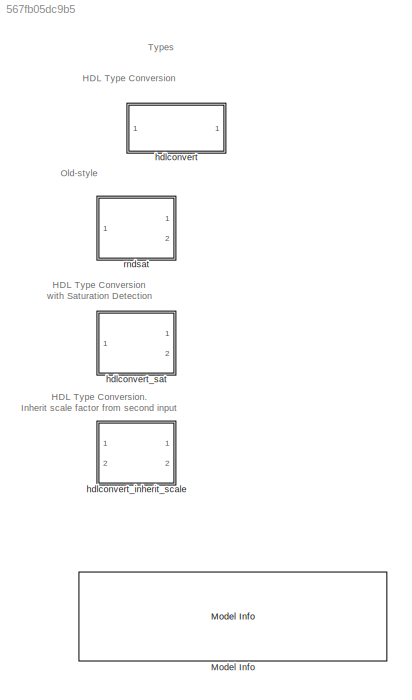
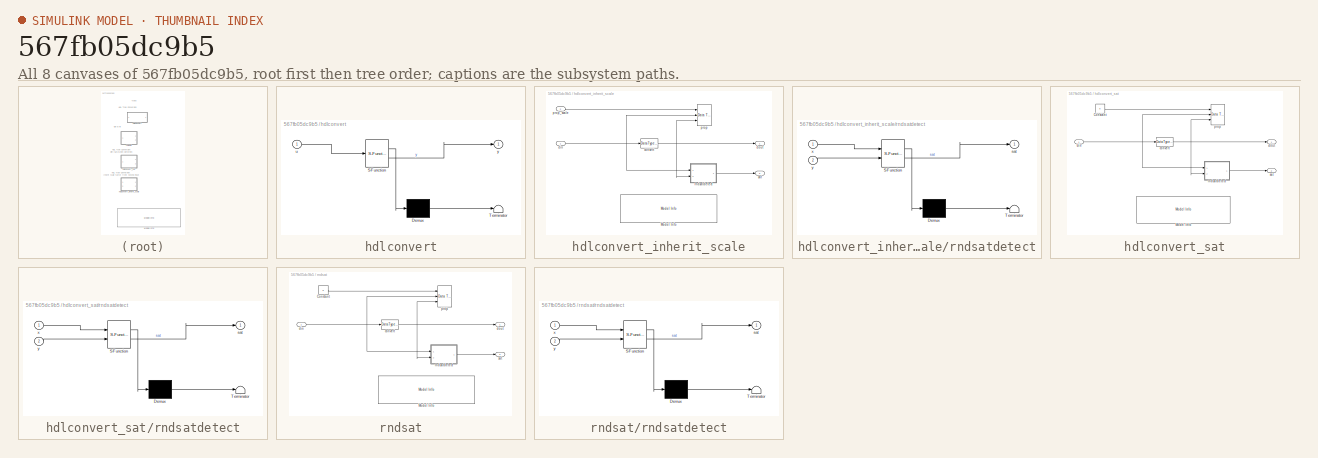
[diagram: thumbnail index - all 8 canvases of the model, root first then tree order]
MODEL slx_567fb05dc9b5
KIND library
CONFIG AbsTol = auto
CONFIG EnableMultiTasking = on
CONFIG FixedStep = auto
CONFIG MaxStep = auto
CONFIG MinStep = auto
CONFIG RelTol = 1e-3
CONFIG SampleTimeConstraint = Unconstrained
CONFIG SolverName = ode45
CONFIG StartTime = 0.0
CONFIG StopTime = 10.0
BLOCK [Reference] Model Info  REF=simulink/Model-Wide
Utilities/Model Info
  Ports = []
  SourceBlock = simulink/Model-Wide\nUtilities/Model Info
  SourceProductBaseCode = SL
  SourceType = CMBlock
BLOCK [SubSystem] hdlconvert
  ErrorFcn = Stateflow.Translate.translate
  PermitHierarchicalResolution = ExplicitOnly
  Ports = [1, 1]
  RequestExecContextInheritance = off
  SFBlockType = MATLAB Function
BLOCK [Demux] hdlconvert/ Demux 
  Outputs = 1
  Ports = [1, 1]
BLOCK [S-Function] hdlconvert/ SFunction 
  EnableBusSupport = off
  FunctionName = sf_sfun
  Parameters = Sforce,extend,maxwidth,roundMode,saturate,scaleopt,signed
  PortCounts = [1 2]
  Ports = [1, 2]
  SFcnIsStateOwnerBlock = off
  SFunctionDeploymentMode = off
  Tag = Stateflow S-Function 3
BLOCK [Terminator] hdlconvert/ Terminator 
BLOCK [Inport] hdlconvert/u
BLOCK [Outport] hdlconvert/y
BLOCK [SubSystem] hdlconvert_inherit_scale
  PermitHierarchicalResolution = None
  Ports = [2, 2]
  RTWSystemCode = Inline
  RequestExecContextInheritance = off
  TreatAsAtomicUnit = on
BLOCK [Reference] hdlconvert_inherit_scale/Model Info  REF=simulink/Model-Wide
Utilities/Model Info
  Ports = []
  SourceBlock = simulink/Model-Wide\nUtilities/Model Info
  SourceProductBaseCode = SL
  SourceType = CMBlock
BLOCK [DataTypeConversion] hdlconvert_inherit_scale/convert
  RndMeth = Nearest
BLOCK [Inport] hdlconvert_inherit_scale/din
BLOCK [Outport] hdlconvert_inherit_scale/dout
BLOCK [Reference] hdlconvert_inherit_scale/prop  REF=simulink/Signal
Attributes/Data Type
Propagation
  Ports = [3]
  SourceBlock = simulink/Signal\nAttributes/Data Type\nPropagation
  SourceProductBaseCode = SL
  SourceType = Data Type Propagation
BLOCK [Inport] hdlconvert_inherit_scale/prop_scale
  Port = 2
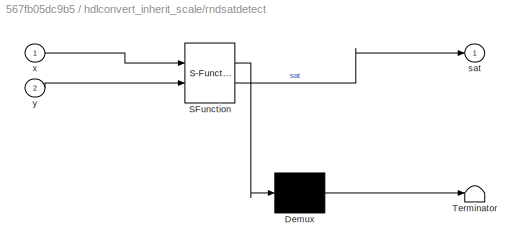
BLOCK [SubSystem] hdlconvert_inherit_scale/rndsatdetect
  ErrorFcn = Stateflow.Translate.translate
  PermitHierarchicalResolution = ExplicitOnly
  Ports = [2, 1]
  RequestExecContextInheritance = off
  SFBlockType = MATLAB Function
  TreatAsAtomicUnit = on
BLOCK [Demux] hdlconvert_inherit_scale/rndsatdetect/ Demux 
  Outputs = 1
  Ports = [1, 1]
BLOCK [S-Function] hdlconvert_inherit_scale/rndsatdetect/ SFunction 
  EnableBusSupport = off
  FunctionName = sf_sfun
  Parameters = holdSaturate
  PortCounts = [2 2]
  Ports = [2, 2]
  SFcnIsStateOwnerBlock = off
  SFunctionDeploymentMode = off
  Tag = Stateflow S-Function 1
BLOCK [Terminator] hdlconvert_inherit_scale/rndsatdetect/ Terminator 
BLOCK [Outport] hdlconvert_inherit_scale/rndsatdetect/sat
BLOCK [Inport] hdlconvert_inherit_scale/rndsatdetect/x
BLOCK [Inport] hdlconvert_inherit_scale/rndsatdetect/y
  Port = 2
BLOCK [Outport] hdlconvert_inherit_scale/sat
  Port = 2
BLOCK [SubSystem] hdlconvert_sat
  PermitHierarchicalResolution = None
  Ports = [1, 2]
  RTWSystemCode = Inline
  RequestExecContextInheritance = off
  TreatAsAtomicUnit = on
BLOCK [Constant] hdlconvert_sat/Constant
  LockScale = on
  OutDataTypeStr = fixdt(outSigned,outWidth,specPrecision)
  Value = 0
BLOCK [Reference] hdlconvert_sat/Model Info  REF=simulink/Model-Wide
Utilities/Model Info
  Ports = []
  SourceBlock = simulink/Model-Wide\nUtilities/Model Info
  SourceProductBaseCode = SL
  SourceType = CMBlock
BLOCK [DataTypeConversion] hdlconvert_sat/convert
  RndMeth = Nearest
BLOCK [Inport] hdlconvert_sat/din
BLOCK [Outport] hdlconvert_sat/dout
BLOCK [Reference] hdlconvert_sat/prop  REF=simulink/Signal
Attributes/Data Type
Propagation
  Ports = [3]
  SourceBlock = simulink/Signal\nAttributes/Data Type\nPropagation
  SourceProductBaseCode = SL
  SourceType = Data Type Propagation
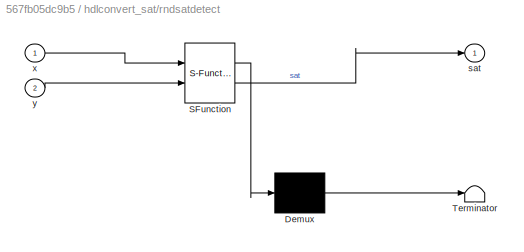
BLOCK [SubSystem] hdlconvert_sat/rndsatdetect
  ErrorFcn = Stateflow.Translate.translate
  PermitHierarchicalResolution = ExplicitOnly
  Ports = [2, 1]
  RequestExecContextInheritance = off
  SFBlockType = MATLAB Function
  TreatAsAtomicUnit = on
BLOCK [Demux] hdlconvert_sat/rndsatdetect/ Demux 
  Outputs = 1
  Ports = [1, 1]
BLOCK [S-Function] hdlconvert_sat/rndsatdetect/ SFunction 
  EnableBusSupport = off
  FunctionName = sf_sfun
  Parameters = holdSaturate
  PortCounts = [2 2]
  Ports = [2, 2]
  SFcnIsStateOwnerBlock = off
  SFunctionDeploymentMode = off
  Tag = Stateflow S-Function 2
BLOCK [Terminator] hdlconvert_sat/rndsatdetect/ Terminator 
BLOCK [Outport] hdlconvert_sat/rndsatdetect/sat
BLOCK [Inport] hdlconvert_sat/rndsatdetect/x
BLOCK [Inport] hdlconvert_sat/rndsatdetect/y
  Port = 2
BLOCK [Outport] hdlconvert_sat/sat
  Port = 2
BLOCK [SubSystem] rndsat
  PermitHierarchicalResolution = None
  Ports = [1, 2]
  RTWSystemCode = Inline
  RequestExecContextInheritance = off
BLOCK [Constant] rndsat/Constant
  LockScale = on
  OutDataTypeStr = fixdt(outSigned,outWidth,specPrecision)
  Value = 0
BLOCK [Reference] rndsat/Model Info  REF=simulink/Model-Wide
Utilities/Model Info
  Ports = []
  SourceBlock = simulink/Model-Wide\nUtilities/Model Info
  SourceProductBaseCode = SL
  SourceType = CMBlock
BLOCK [DataTypeConversion] rndsat/convert
  RndMeth = Nearest
BLOCK [Inport] rndsat/din
BLOCK [Outport] rndsat/dout
BLOCK [Reference] rndsat/prop  REF=simulink/Signal
Attributes/Data Type
Propagation
  Ports = [3]
  SourceBlock = simulink/Signal\nAttributes/Data Type\nPropagation
  SourceProductBaseCode = SL
  SourceType = Data Type Propagation
BLOCK [SubSystem] rndsat/rndsatdetect
  ErrorFcn = Stateflow.Translate.translate
  PermitHierarchicalResolution = ExplicitOnly
  Ports = [2, 1]
  RequestExecContextInheritance = off
  SFBlockType = MATLAB Function
  TreatAsAtomicUnit = on
BLOCK [Demux] rndsat/rndsatdetect/ Demux 
  Outputs = 1
  Ports = [1, 1]
BLOCK [S-Function] rndsat/rndsatdetect/ SFunction 
  EnableBusSupport = off
  FunctionName = sf_sfun
  Parameters = holdSaturate
  PortCounts = [2 2]
  Ports = [2, 2]
  SFcnIsStateOwnerBlock = off
  SFunctionDeploymentMode = off
  Tag = Stateflow S-Function 4
BLOCK [Terminator] rndsat/rndsatdetect/ Terminator 
BLOCK [Outport] rndsat/rndsatdetect/sat
BLOCK [Inport] rndsat/rndsatdetect/x
BLOCK [Inport] rndsat/rndsatdetect/y
  Port = 2
BLOCK [Outport] rndsat/sat
  Port = 2
ANNOTATION (root): Types
ANNOTATION (root): HDL Type Conversion
ANNOTATION (root): HDL Type Conversion with Saturation Detection
ANNOTATION (root): HDL Type Conversion. Inherit scale factor from second input
ANNOTATION (root): Old-style
CHART hdlconvert_inherit_scale/rndsatdetect states=1 transitions=1
  STATE_LABEL 'eML_blk_kernel()'
  STATE_LABEL 'SCRIPT:\nfunction sat = fcn(x, y, holdSaturate)\n%#codegen\n\nsat = satdetect(x,y, holdSaturate);\n\nend\n    \n\n'
CHART hdlconvert_sat/rndsatdetect states=1 transitions=1
  STATE_LABEL 'eML_blk_kernel()'
  STATE_LABEL 'SCRIPT:\nfunction sat = fcn(x, y, holdSaturate)\n%#codegen\n\nsat = satdetect(x,y, holdSaturate);\n\nend\n    \n\n'
CHART hdlconvert states=1 transitions=1
  STATE_LABEL 'eML_blk_kernel()'
  STATE_LABEL 'SCRIPT:\nfunction y = hdlconvert(u, extend, signed, maxwidth, scaleopt, roundMode, saturate, Sforce) \n%#codegen\ny = hdlconvert(u, extend, signed, maxwidth, scaleopt, roundMode, saturate, Sforce); \n\nend'
CHART rndsat/rndsatdetect states=1 transitions=1
  STATE_LABEL 'eML_blk_kernel()'
  STATE_LABEL 'SCRIPT:\nfunction sat = fcn(x, y, holdSaturate)\n%#codegen\n\nsat = satdetect(x,y, holdSaturate);\n\nend\n    \n\n'
CHART  states=0 transitions=0
CHART  states=0 transitions=0
CHART  states=0 transitions=0
CHART  states=0 transitions=0
